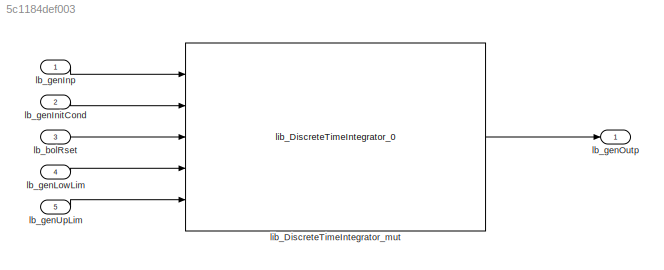
MODEL slx_5c1184def003
KIND model
CONFIG AbsTol = auto
CONFIG EnableMultiTasking = off
CONFIG FixedStep = auto
CONFIG MaxStep = auto
CONFIG MinStep = auto
CONFIG RelTol = 1e-3
CONFIG SampleTimeConstraint = Unconstrained
CONFIG SolverName = VariableStepAuto
CONFIG StartTime = 0.0
CONFIG StopTime = 10.0
BLOCK [Inport] lb_bolRset
  OutDataTypeStr = boolean
  Port = 3
  SampleTime = double(parSampTime)
BLOCK [Inport] lb_genInitCond
  OutDataTypeStr = parOutpDataType
  Port = 2
  SampleTime = double(parSampTime)
BLOCK [Inport] lb_genInp
  OutDataTypeStr = parInpDataType
  SampleTime = double(parSampTime)
BLOCK [Inport] lb_genLowLim
  OutDataTypeStr = parOutpDataType
  Port = 4
  SampleTime = double(parSampTime)
BLOCK [Outport] lb_genOutp
  OutDataTypeStr = parOutpDataType
  SampleTime = double(parSampTime)
BLOCK [Inport] lb_genUpLim
  OutDataTypeStr = parOutpDataType
  Port = 5
  SampleTime = double(parSampTime)
BLOCK [Reference] lib_DiscreteTimeIntegrator_mut  REF=vhit_control_library/lib_DiscreteTimeIntegrator_0  (lib defined in slx_b9b276feab74)
  Ports = [5, 1]
  SourceBlock = vhit_control_library/lib_DiscreteTimeIntegrator_0
LINE lb_bolRset:1 -> lib_DiscreteTimeIntegrator_mut:3
LINE lb_genInitCond:1 -> lib_DiscreteTimeIntegrator_mut:2
LINE lb_genInp:1 -> lib_DiscreteTimeIntegrator_mut:1
LINE lb_genLowLim:1 -> lib_DiscreteTimeIntegrator_mut:4
LINE lb_genUpLim:1 -> lib_DiscreteTimeIntegrator_mut:5
LINE lib_DiscreteTimeIntegrator_mut:1 -> lb_genOutp:1
